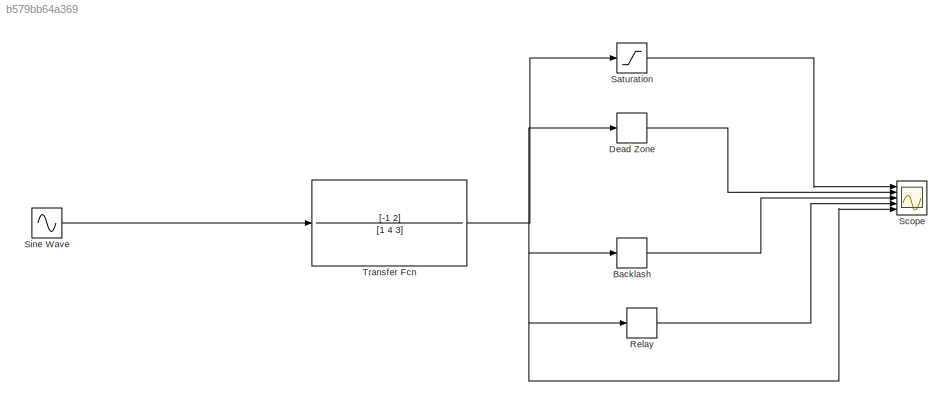
MODEL slx_b579bb64a369
KIND model
CONFIG AbsTol = auto
CONFIG EnableMultiTasking = off
CONFIG FixedStep = auto
CONFIG MaxStep = auto
CONFIG MinStep = auto
CONFIG RelTol = 1e-3
CONFIG SampleTimeConstraint = Unconstrained
CONFIG Solver = VariableStepAuto
CONFIG SolverName = VariableStepAuto
CONFIG StartTime = 0.0
CONFIG StopTime = 10.0
BLOCK [Backlash] Backlash
  BacklashWidth = 0.1
  InputProcessing = Elements as channels (sample based)
BLOCK [DeadZone] Dead Zone
  LowerValue = -0.1
  UpperValue = 0.1
BLOCK [Relay] Relay
  InputProcessing = Elements as channels (sample based)
  OffOutputValue = -0.2
  OnOutputValue = 0.2
BLOCK [Saturate] Saturation
  InputPortMap = u0
  LowerLimit = -0.1
  Ports = [1, 1]
  UpperLimit = 0.1
BLOCK [Scope] Scope
  NumInputPorts = 5
  Ports = [5]
  ScopeSpecificationString = Simulink.scopes.TimeScopeBlockCfg('CurrentConfiguration', extmgr.ConfigurationSet(extmgr.Configuration('Core','General UI',true),extmgr.Configuration('Core','Source UI',true),extmgr.Configuration('Sources','WiredSimulink',true,'DataLogging',true,'DataLoggingSaveFormat','StructureWithTime'),extmgr.Configuration('Visuals','Time Domain',true,'SerializedDisplays',{struct('MinYLimReal','-0.32796','MaxY...<+1485ch>
BLOCK [Sin] Sine Wave
  Frequency = 5
  Ports = [0, 1]
  SampleTime = 0
BLOCK [TransferFcn] Transfer Fcn
  Denominator = [1 4 3]
  Numerator = [-1 2]
LINE Backlash:1 -> Scope:3
LINE Dead Zone:1 -> Scope:2
LINE Relay:1 -> Scope:4
LINE Saturation:1 -> Scope:1
LINE Sine Wave:1 -> Transfer Fcn:1
NET Transfer Fcn:1 -> Backlash:1, Dead Zone:1, Relay:1, Saturation:1, Scope:5
note: NET lines group one-source signal fan-out (src -> all destinations, sorted); 1:1 wires keep LINE
